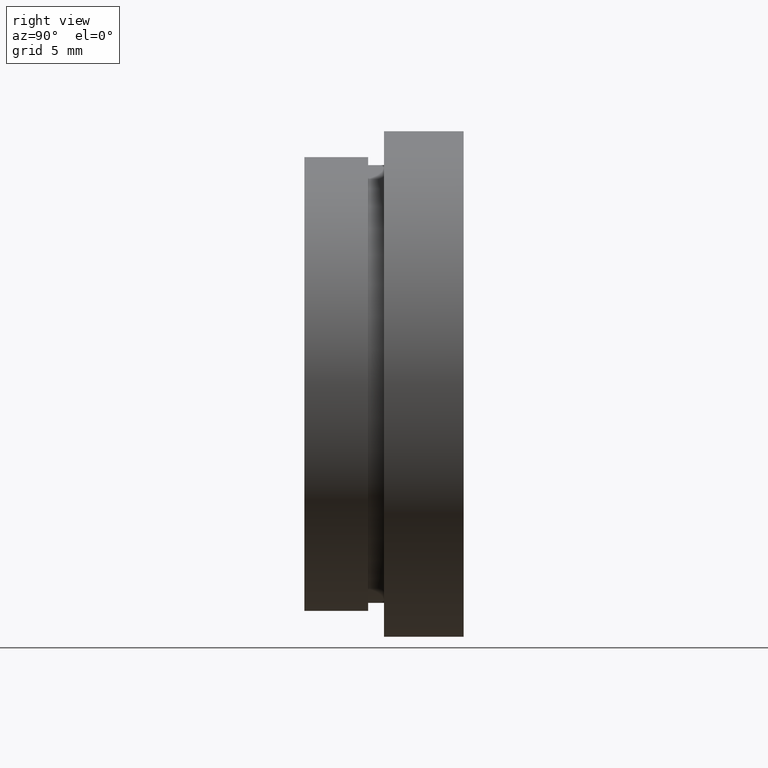
[diagram: clean part render]
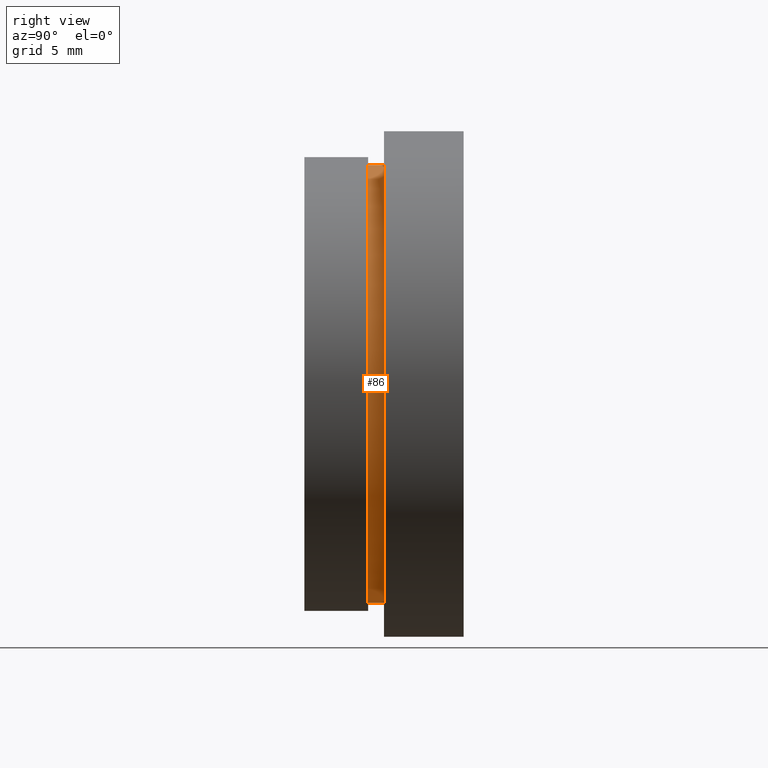
[diagram: same view with one face highlighted and labeled with its STEP entity id]
A machine part, right view. The second image highlights one B-rep face of the part: STEP entity #86.
In plain terms, the highlighted cylindrical surface (partial cylindrical patch) has radius 13.75 mm, axis along (-0, 1, -0).
Its self-contained STEP definition (entity closure, byte-faithful):
#7 = DIRECTION ( 'NONE',  ( -0.0000000000000000000, 1.000000000000000000, -0.0000000000000000000 ) ) ;
#10 = CARTESIAN_POINT ( 'NONE',  ( 0.0000000000000000000, 5.000000000000000900, 13.75000000000000000 ) ) ;
#27 = VERTEX_POINT ( 'NONE', #10 ) ;
#50 = CIRCLE ( 'NONE', #548, 13.75000000000000000 ) ;
#82 = VECTOR ( 'NONE', #477, 1000.000000000000000 ) ;
#86 = ADVANCED_FACE ( 'NONE', ( #353 ), #233, .T. ) ;
#88 = EDGE_LOOP ( 'NONE', ( #441, #556, #194, #541 ) ) ;
#132 = CARTESIAN_POINT ( 'NONE',  ( 0.0000000000000000000, 13.74468085106383300, 13.75000000000000000 ) ) ;
#141 = DIRECTION ( 'NONE',  ( -0.0000000000000000000, 1.000000000000000000, -0.0000000000000000000 ) ) ;
#149 = CARTESIAN_POINT ( 'NONE',  ( 1.683889348827610700E-015, 4.000000000000000000, -13.75000000000000000 ) ) ;
#194 = ORIENTED_EDGE ( 'NONE', *, *, #568, .F. ) ;
#198 = DIRECTION ( 'NONE',  ( -0.0000000000000000000, 1.000000000000000000, -0.0000000000000000000 ) ) ;
#233 = CYLINDRICAL_SURFACE ( 'NONE', #488, 13.75000000000000000 ) ;
#282 = DIRECTION ( 'NONE',  ( -0.0000000000000000000, 1.000000000000000000, -0.0000000000000000000 ) ) ;
#285 = DIRECTION ( 'NONE',  ( 0.0000000000000000000, 0.0000000000000000000, 1.000000000000000000 ) ) ;
#333 = CARTESIAN_POINT ( 'NONE',  ( 0.0000000000000000000, 5.000000000000000900, 0.0000000000000000000 ) ) ;
#344 = LINE ( 'NONE', #474, #456 ) ;
#353 = FACE_OUTER_BOUND ( 'NONE', #88, .T. ) ;
#360 = CARTESIAN_POINT ( 'NONE',  ( 0.0000000000000000000, 4.000000000000000000, 13.75000000000000000 ) ) ;
#362 = VERTEX_POINT ( 'NONE', #149 ) ;
#382 = AXIS2_PLACEMENT_3D ( 'NONE', #333, #7, #285 ) ;
#383 = DIRECTION ( 'NONE',  ( 0.0000000000000000000, 0.0000000000000000000, 1.000000000000000000 ) ) ;
#434 = CARTESIAN_POINT ( 'NONE',  ( 0.0000000000000000000, 13.74468085106383300, 0.0000000000000000000 ) ) ;
#441 = ORIENTED_EDGE ( 'NONE', *, *, #597, .T. ) ;
#456 = VECTOR ( 'NONE', #141, 1000.000000000000000 ) ;
#468 = EDGE_CURVE ( 'NONE', #362, #526, #344, .T. ) ;
#471 = CARTESIAN_POINT ( 'NONE',  ( 1.683889348827610700E-015, 5.000000000000000900, -13.75000000000000000 ) ) ;
#474 = CARTESIAN_POINT ( 'NONE',  ( 1.683889348827610700E-015, 13.74468085106383300, -13.75000000000000000 ) ) ;
#477 = DIRECTION ( 'NONE',  ( -0.0000000000000000000, 1.000000000000000000, -0.0000000000000000000 ) ) ;
#488 = AXIS2_PLACEMENT_3D ( 'NONE', #434, #282, #383 ) ;
#489 = CARTESIAN_POINT ( 'NONE',  ( 0.0000000000000000000, 4.000000000000000000, 0.0000000000000000000 ) ) ;
#505 = EDGE_CURVE ( 'NONE', #586, #27, #584, .T. ) ;
#526 = VERTEX_POINT ( 'NONE', #471 ) ;
#537 = DIRECTION ( 'NONE',  ( 0.0000000000000000000, 0.0000000000000000000, 1.000000000000000000 ) ) ;
#541 = ORIENTED_EDGE ( 'NONE', *, *, #505, .F. ) ;
#548 = AXIS2_PLACEMENT_3D ( 'NONE', #489, #198, #537 ) ;
#556 = ORIENTED_EDGE ( 'NONE', *, *, #468, .T. ) ;
#557 = CIRCLE ( 'NONE', #382, 13.75000000000000000 ) ;
#568 = EDGE_CURVE ( 'NONE', #27, #526, #557, .T. ) ;
#584 = LINE ( 'NONE', #132, #82 ) ;
#586 = VERTEX_POINT ( 'NONE', #360 ) ;
#597 = EDGE_CURVE ( 'NONE', #586, #362, #50, .T. ) ;